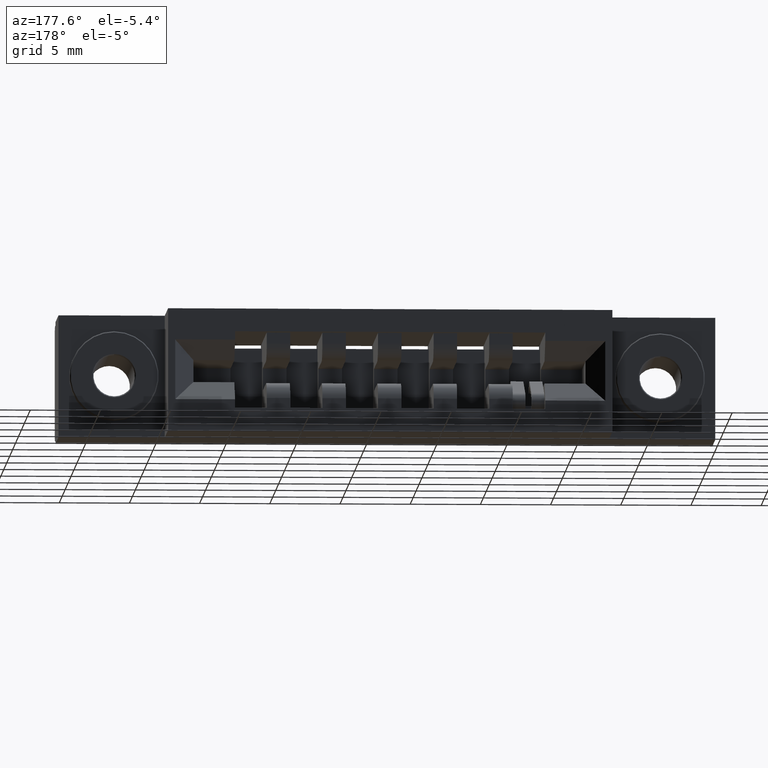
[diagram: clean part render]
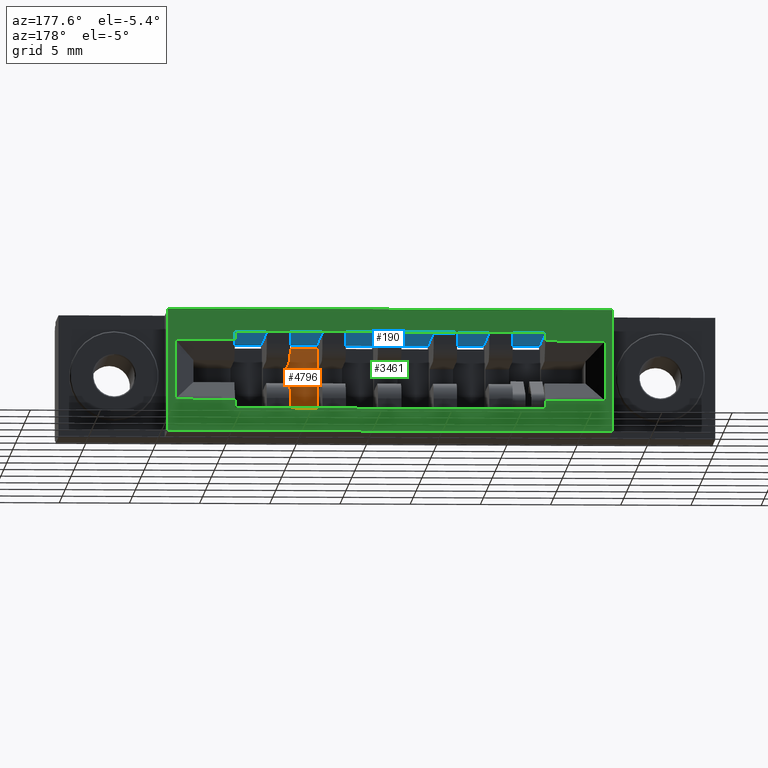
[diagram: same view with three faces highlighted in distinct colors, each labeled with its STEP entity id]
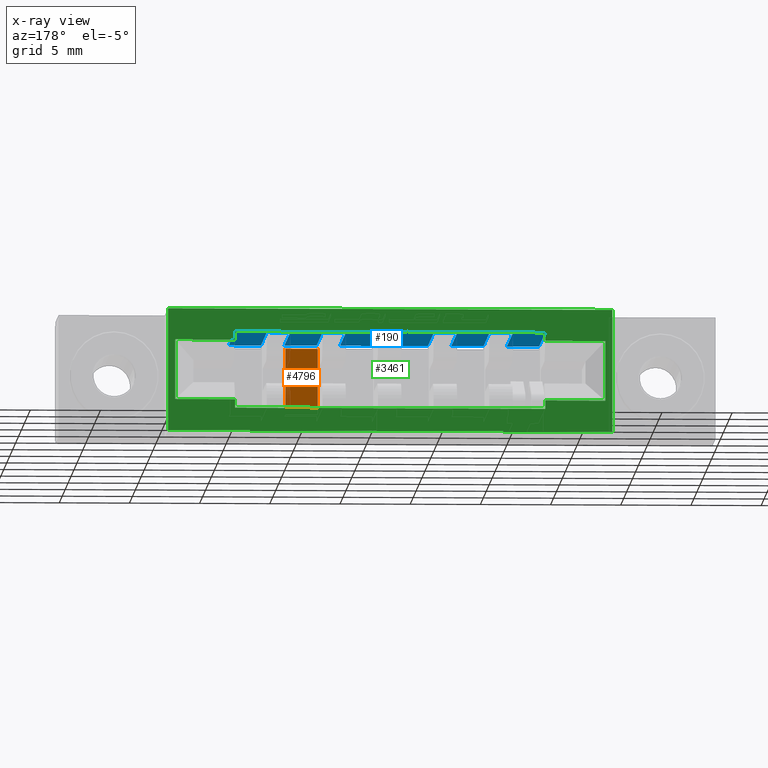
[diagram: x-ray of the same camera — body ghosted, the three highlighted faces saturated]
A machine part, auxiliary view with three faces highlighted in distinct colors.
The next image is the same camera in x-ray (body ghosted, the three faces saturated) — at least one of them is partly hidden behind the body in this view.
Their STEP definitions:

[orange] entity #4796 — the highlighted planar face has unit normal (0, 1, 0).
#553 = ORIENTED_EDGE ( 'NONE', *, *, #4237, .F. ) ;
#997 = CARTESIAN_POINT ( 'NONE',  ( 1.110000000000000500, 0.1160000000000000100, -0.07900000000000020900 ) ) ;
#1367 = VERTEX_POINT ( 'NONE', #9886 ) ;
#1820 = ORIENTED_EDGE ( 'NONE', *, *, #9648, .T. ) ;
#2140 = VERTEX_POINT ( 'NONE', #7825 ) ;
#2379 = EDGE_LOOP ( 'NONE', ( #6875, #8348, #553, #1820 ) ) ;
#2639 = VERTEX_POINT ( 'NONE', #4643 ) ;
#2917 = AXIS2_PLACEMENT_3D ( 'NONE', #10311, #8313, #10034 ) ;
#3245 = CARTESIAN_POINT ( 'NONE',  ( 1.110000000000000500, 0.1160000000000000100, -0.07900000000000020900 ) ) ;
#3788 = DIRECTION ( 'NONE',  ( -0.0000000000000000000, -0.0000000000000000000, 1.000000000000000000 ) ) ;
#4216 = EDGE_CURVE ( 'NONE', #1367, #6765, #6248, .T. ) ;
#4237 = EDGE_CURVE ( 'NONE', #2639, #2140, #6191, .T. ) ;
#4586 = FACE_OUTER_BOUND ( 'NONE', #2379, .T. ) ;
#4643 = CARTESIAN_POINT ( 'NONE',  ( 1.110000000000000500, 0.1160000000000000100, -0.2640000000000001200 ) ) ;
#4672 = VECTOR ( 'NONE', #9397, 39.37007874015748100 ) ;
#4796 = ADVANCED_FACE ( 'NONE', ( #4586 ), #8059, .T. ) ;
#4878 = LINE ( 'NONE', #8355, #4672 ) ;
#5497 = LINE ( 'NONE', #8647, #9651 ) ;
#5505 = DIRECTION ( 'NONE',  ( -1.000000000000000000, -0.0000000000000000000, -3.794233324533698900E-016 ) ) ;
#5864 = EDGE_CURVE ( 'NONE', #1367, #2140, #4878, .T. ) ;
#6149 = VECTOR ( 'NONE', #7850, 39.37007874015748100 ) ;
#6191 = LINE ( 'NONE', #7976, #6149 ) ;
#6248 = LINE ( 'NONE', #3245, #6296 ) ;
#6296 = VECTOR ( 'NONE', #5505, 39.37007874015748100 ) ;
#6765 = VERTEX_POINT ( 'NONE', #997 ) ;
#6875 = ORIENTED_EDGE ( 'NONE', *, *, #4216, .F. ) ;
#7825 = CARTESIAN_POINT ( 'NONE',  ( 1.200000000000000400, 0.1160000000000000100, -0.2640000000000001200 ) ) ;
#7850 = DIRECTION ( 'NONE',  ( 1.000000000000000000, 0.0000000000000000000, -3.794233324533698900E-016 ) ) ;
#7976 = CARTESIAN_POINT ( 'NONE',  ( 1.110000000000000500, 0.1160000000000000100, -0.2640000000000000700 ) ) ;
#8059 = PLANE ( 'NONE',  #2917 ) ;
#8313 = DIRECTION ( 'NONE',  ( 0.0000000000000000000, 1.000000000000000000, 0.0000000000000000000 ) ) ;
#8348 = ORIENTED_EDGE ( 'NONE', *, *, #5864, .T. ) ;
#8355 = CARTESIAN_POINT ( 'NONE',  ( 1.200000000000000400, 0.1160000000000000100, -0.06400000000000011200 ) ) ;
#8647 = CARTESIAN_POINT ( 'NONE',  ( 1.110000000000000500, 0.1160000000000000100, -0.06400000000000008500 ) ) ;
#9397 = DIRECTION ( 'NONE',  ( 0.0000000000000000000, 0.0000000000000000000, -1.000000000000000000 ) ) ;
#9648 = EDGE_CURVE ( 'NONE', #2639, #6765, #5497, .T. ) ;
#9651 = VECTOR ( 'NONE', #3788, 39.37007874015748100 ) ;
#9886 = CARTESIAN_POINT ( 'NONE',  ( 1.200000000000000400, 0.1160000000000000100, -0.07900000000000016700 ) ) ;
#10034 = DIRECTION ( 'NONE',  ( 0.0000000000000000000, -0.0000000000000000000, 1.000000000000000000 ) ) ;
#10311 = CARTESIAN_POINT ( 'NONE',  ( 1.110000000000000500, 0.1160000000000000100, -0.2790000000000000800 ) ) ;

[blue] entity #190 — the highlighted planar face has unit normal (0, 0, 1).
#28 = LINE ( 'NONE', #501, #4801 ) ;
#41 = LINE ( 'NONE', #9350, #5059 ) ;
#91 = VERTEX_POINT ( 'NONE', #7781 ) ;
#153 = VERTEX_POINT ( 'NONE', #8618 ) ;
#190 = ADVANCED_FACE ( 'NONE', ( #8522 ), #632, .F. ) ;
#246 = CARTESIAN_POINT ( 'NONE',  ( 0.7320000000000004300, 0.05099999999999999700, -0.06399999999999991800 ) ) ;
#429 = VECTOR ( 'NONE', #8269, 39.37007874015748100 ) ;
#442 = CARTESIAN_POINT ( 'NONE',  ( 0.5760000000000004000, 0.05099999999999999700, -0.06400000000000011200 ) ) ;
#475 = CARTESIAN_POINT ( 'NONE',  ( 0.4860000000000004300, 0.4419999999999999500, -0.06399999999999991800 ) ) ;
#476 = LINE ( 'NONE', #5905, #429 ) ;
#501 = CARTESIAN_POINT ( 'NONE',  ( 0.9540000000000004000, 0.1160000000000000100, -0.06400000000000008500 ) ) ;
#587 = CARTESIAN_POINT ( 'NONE',  ( 1.200000000000000400, 0.4419999999999999500, -0.06400000000000011200 ) ) ;
#598 = VECTOR ( 'NONE', #6762, 39.37007874015748100 ) ;
#632 = PLANE ( 'NONE',  #4126 ) ;
#652 = DIRECTION ( 'NONE',  ( -1.000000000000000000, 0.0000000000000000000, 1.897116662266849500E-016 ) ) ;
#688 = LINE ( 'NONE', #9585, #762 ) ;
#698 = ORIENTED_EDGE ( 'NONE', *, *, #6629, .F. ) ;
#762 = VECTOR ( 'NONE', #6365, 39.37007874015748100 ) ;
#768 = VERTEX_POINT ( 'NONE', #3516 ) ;
#838 = VERTEX_POINT ( 'NONE', #8982 ) ;
#847 = DIRECTION ( 'NONE',  ( 1.000000000000000000, 0.0000000000000000000, 0.0000000000000000000 ) ) ;
#985 = VECTOR ( 'NONE', #7545, 39.37007874015748100 ) ;
#1003 = LINE ( 'NONE', #7107, #985 ) ;
#1055 = CARTESIAN_POINT ( 'NONE',  ( 1.110000000000000500, 0.05099999999999999700, -0.06399999999999991800 ) ) ;
#1195 = CARTESIAN_POINT ( 'NONE',  ( 0.5760000000000004000, 0.4729999999999999800, -0.06400000000000011200 ) ) ;
#1231 = VERTEX_POINT ( 'NONE', #3319 ) ;
#1342 = CARTESIAN_POINT ( 'NONE',  ( 0.6420000000000004600, 0.4419999999999999500, -0.06399999999999991800 ) ) ;
#1377 = VECTOR ( 'NONE', #652, 39.37007874015748100 ) ;
#1421 = LINE ( 'NONE', #442, #1377 ) ;
#1501 = VECTOR ( 'NONE', #9554, 39.37007874015748100 ) ;
#1512 = VECTOR ( 'NONE', #7908, 39.37007874015748100 ) ;
#1582 = CARTESIAN_POINT ( 'NONE',  ( 0.8880000000000004600, 0.1160000000000000100, -0.06400000000000011200 ) ) ;
#1668 = ORIENTED_EDGE ( 'NONE', *, *, #6178, .T. ) ;
#1672 = DIRECTION ( 'NONE',  ( -0.0000000000000000000, 1.000000000000000000, -0.0000000000000000000 ) ) ;
#1691 = CARTESIAN_POINT ( 'NONE',  ( 1.266000000000000500, 0.05099999999999999700, -0.06399999999999991800 ) ) ;
#1721 = CARTESIAN_POINT ( 'NONE',  ( 0.5760000000000004000, 0.1160000000000000100, -0.06400000000000011200 ) ) ;
#1728 = VERTEX_POINT ( 'NONE', #9601 ) ;
#1754 = LINE ( 'NONE', #7613, #1501 ) ;
#1765 = VECTOR ( 'NONE', #3562, 39.37007874015748100 ) ;
#1798 = LINE ( 'NONE', #7892, #1512 ) ;
#1800 = VECTOR ( 'NONE', #9920, 39.37007874015748100 ) ;
#1821 = LINE ( 'NONE', #7751, #1765 ) ;
#1918 = LINE ( 'NONE', #2029, #3631 ) ;
#1938 = VERTEX_POINT ( 'NONE', #1342 ) ;
#2029 = CARTESIAN_POINT ( 'NONE',  ( 1.266000000000000500, 0.1160000000000000100, -0.06400000000000008500 ) ) ;
#2058 = CARTESIAN_POINT ( 'NONE',  ( 1.356000000000000500, 0.4419999999999999500, -0.06399999999999991800 ) ) ;
#2081 = VECTOR ( 'NONE', #7179, 39.37007874015748100 ) ;
#2131 = LINE ( 'NONE', #8764, #2081 ) ;
#2215 = VECTOR ( 'NONE', #4250, 39.37007874015748100 ) ;
#2398 = ORIENTED_EDGE ( 'NONE', *, *, #6250, .T. ) ;
#2418 = LINE ( 'NONE', #2058, #2215 ) ;
#2462 = DIRECTION ( 'NONE',  ( 1.000000000000000000, 0.0000000000000000000, -1.897116662266849500E-016 ) ) ;
#2468 = DIRECTION ( 'NONE',  ( -0.0000000000000000000, 1.000000000000000000, -0.0000000000000000000 ) ) ;
#2472 = DIRECTION ( 'NONE',  ( 1.897116662266849500E-016, 0.0000000000000000000, 1.000000000000000000 ) ) ;
#2485 = LINE ( 'NONE', #3762, #6647 ) ;
#2645 = ORIENTED_EDGE ( 'NONE', *, *, #6156, .F. ) ;
#2782 = VECTOR ( 'NONE', #3085, 39.37007874015748100 ) ;
#2856 = LINE ( 'NONE', #9478, #2782 ) ;
#2932 = VECTOR ( 'NONE', #847, 39.37007874015748100 ) ;
#2975 = LINE ( 'NONE', #475, #2932 ) ;
#2989 = VERTEX_POINT ( 'NONE', #4480 ) ;
#2993 = VECTOR ( 'NONE', #3147, 39.37007874015748100 ) ;
#3085 = DIRECTION ( 'NONE',  ( -0.0000000000000000000, 1.000000000000000000, -0.0000000000000000000 ) ) ;
#3118 = VECTOR ( 'NONE', #7684, 39.37007874015748100 ) ;
#3147 = DIRECTION ( 'NONE',  ( 1.000000000000000000, 0.0000000000000000000, 0.0000000000000000000 ) ) ;
#3173 = VERTEX_POINT ( 'NONE', #1691 ) ;
#3190 = CARTESIAN_POINT ( 'NONE',  ( 0.4860000000000004300, 0.05099999999999999700, -0.06400000000000008500 ) ) ;
#3269 = VECTOR ( 'NONE', #5222, 39.37007874015748100 ) ;
#3303 = VERTEX_POINT ( 'NONE', #5092 ) ;
#3319 = CARTESIAN_POINT ( 'NONE',  ( 1.110000000000000500, 0.4419999999999999500, -0.06399999999999991800 ) ) ;
#3343 = VERTEX_POINT ( 'NONE', #1055 ) ;
#3430 = ORIENTED_EDGE ( 'NONE', *, *, #9487, .T. ) ;
#3431 = LINE ( 'NONE', #9773, #598 ) ;
#3499 = ORIENTED_EDGE ( 'NONE', *, *, #6221, .F. ) ;
#3516 = CARTESIAN_POINT ( 'NONE',  ( 0.8880000000000004600, 0.4419999999999999500, -0.06400000000000011200 ) ) ;
#3562 = DIRECTION ( 'NONE',  ( 1.000000000000000000, 0.0000000000000000000, 0.0000000000000000000 ) ) ;
#3631 = VECTOR ( 'NONE', #8590, 39.37007874015748100 ) ;
#3676 = VECTOR ( 'NONE', #7513, 39.37007874015748100 ) ;
#3708 = ORIENTED_EDGE ( 'NONE', *, *, #7129, .F. ) ;
#3762 = CARTESIAN_POINT ( 'NONE',  ( 0.7980000000000003800, 0.1160000000000000100, -0.06400000000000008500 ) ) ;
#3790 = LINE ( 'NONE', #5417, #7879 ) ;
#3870 = ORIENTED_EDGE ( 'NONE', *, *, #9631, .T. ) ;
#3909 = ORIENTED_EDGE ( 'NONE', *, *, #9457, .F. ) ;
#3968 = VERTEX_POINT ( 'NONE', #5575 ) ;
#4126 = AXIS2_PLACEMENT_3D ( 'NONE', #10180, #2472, #2462 ) ;
#4217 = ORIENTED_EDGE ( 'NONE', *, *, #6251, .T. ) ;
#4250 = DIRECTION ( 'NONE',  ( -0.0000000000000000000, 1.000000000000000000, -0.0000000000000000000 ) ) ;
#4278 = VERTEX_POINT ( 'NONE', #7216 ) ;
#4480 = CARTESIAN_POINT ( 'NONE',  ( 1.044000000000000500, 0.05099999999999999700, -0.06399999999999991800 ) ) ;
#4653 = DIRECTION ( 'NONE',  ( -0.0000000000000000000, 1.000000000000000000, -0.0000000000000000000 ) ) ;
#4683 = DIRECTION ( 'NONE',  ( -0.0000000000000000000, 1.000000000000000000, -0.0000000000000000000 ) ) ;
#4792 = DIRECTION ( 'NONE',  ( 1.000000000000000000, -0.0000000000000000000, -1.897116662266849500E-016 ) ) ;
#4801 = VECTOR ( 'NONE', #1672, 39.37007874015748100 ) ;
#4851 = ORIENTED_EDGE ( 'NONE', *, *, #9296, .T. ) ;
#5026 = ORIENTED_EDGE ( 'NONE', *, *, #6233, .T. ) ;
#5059 = VECTOR ( 'NONE', #4653, 39.37007874015748100 ) ;
#5073 = ORIENTED_EDGE ( 'NONE', *, *, #5240, .F. ) ;
#5083 = ORIENTED_EDGE ( 'NONE', *, *, #9285, .F. ) ;
#5092 = CARTESIAN_POINT ( 'NONE',  ( 1.200000000000000400, 0.05099999999999999700, -0.06399999999999991800 ) ) ;
#5096 = ORIENTED_EDGE ( 'NONE', *, *, #6291, .T. ) ;
#5186 = ORIENTED_EDGE ( 'NONE', *, *, #9156, .T. ) ;
#5218 = ORIENTED_EDGE ( 'NONE', *, *, #6766, .T. ) ;
#5222 = DIRECTION ( 'NONE',  ( -0.0000000000000000000, 1.000000000000000000, -0.0000000000000000000 ) ) ;
#5240 = EDGE_CURVE ( 'NONE', #1728, #8350, #2975, .T. ) ;
#5277 = EDGE_CURVE ( 'NONE', #5362, #838, #2856, .T. ) ;
#5291 = VECTOR ( 'NONE', #2468, 39.37007874015748100 ) ;
#5312 = CARTESIAN_POINT ( 'NONE',  ( 0.6420000000000004600, 0.05099999999999999700, -0.06399999999999991800 ) ) ;
#5362 = VERTEX_POINT ( 'NONE', #3190 ) ;
#5364 = LINE ( 'NONE', #9230, #3118 ) ;
#5417 = CARTESIAN_POINT ( 'NONE',  ( 1.110000000000000500, 0.1160000000000000100, -0.06400000000000008500 ) ) ;
#5470 = ORIENTED_EDGE ( 'NONE', *, *, #7316, .F. ) ;
#5575 = CARTESIAN_POINT ( 'NONE',  ( 0.5760000000000004000, 0.05099999999999999700, -0.06400000000000011200 ) ) ;
#5613 = ORIENTED_EDGE ( 'NONE', *, *, #9135, .F. ) ;
#5622 = LINE ( 'NONE', #1721, #3676 ) ;
#5666 = ORIENTED_EDGE ( 'NONE', *, *, #6340, .T. ) ;
#5737 = EDGE_CURVE ( 'NONE', #6648, #1231, #688, .T. ) ;
#5793 = ORIENTED_EDGE ( 'NONE', *, *, #5277, .T. ) ;
#5839 = VERTEX_POINT ( 'NONE', #246 ) ;
#5873 = ORIENTED_EDGE ( 'NONE', *, *, #7255, .T. ) ;
#5905 = CARTESIAN_POINT ( 'NONE',  ( 0.5760000000000004000, 0.05099999999999999700, -0.06400000000000011200 ) ) ;
#5921 = CARTESIAN_POINT ( 'NONE',  ( 0.7980000000000003800, 0.4419999999999999500, -0.06399999999999991800 ) ) ;
#6089 = VERTEX_POINT ( 'NONE', #8668 ) ;
#6142 = CARTESIAN_POINT ( 'NONE',  ( 1.044000000000000500, 0.1160000000000000100, -0.06400000000000011200 ) ) ;
#6156 = EDGE_CURVE ( 'NONE', #6089, #91, #2418, .T. ) ;
#6178 = EDGE_CURVE ( 'NONE', #6089, #3173, #2131, .T. ) ;
#6215 = DIRECTION ( 'NONE',  ( -0.0000000000000000000, 1.000000000000000000, -0.0000000000000000000 ) ) ;
#6221 = EDGE_CURVE ( 'NONE', #8859, #4278, #1821, .T. ) ;
#6233 = EDGE_CURVE ( 'NONE', #3303, #3343, #1798, .T. ) ;
#6250 = EDGE_CURVE ( 'NONE', #2989, #9313, #1421, .T. ) ;
#6251 = EDGE_CURVE ( 'NONE', #153, #7643, #1754, .T. ) ;
#6291 = EDGE_CURVE ( 'NONE', #5839, #7969, #1003, .T. ) ;
#6340 = EDGE_CURVE ( 'NONE', #3968, #5362, #476, .T. ) ;
#6365 = DIRECTION ( 'NONE',  ( 1.000000000000000000, 0.0000000000000000000, 0.0000000000000000000 ) ) ;
#6629 = EDGE_CURVE ( 'NONE', #3303, #8859, #7611, .T. ) ;
#6647 = VECTOR ( 'NONE', #4683, 39.37007874015748100 ) ;
#6648 = VERTEX_POINT ( 'NONE', #7588 ) ;
#6762 = DIRECTION ( 'NONE',  ( -0.0000000000000000000, 1.000000000000000000, -0.0000000000000000000 ) ) ;
#6766 = EDGE_CURVE ( 'NONE', #3173, #4278, #1918, .T. ) ;
#6971 = EDGE_LOOP ( 'NONE', ( #2645, #1668, #5218, #3499, #698, #5026, #3870, #8096, #9095, #2398, #3430, #3708, #3909, #4217, #4851, #5073, #5083, #5096, #5186, #5470, #5613, #5666, #5793, #5873 ) ) ;
#7095 = CARTESIAN_POINT ( 'NONE',  ( 0.9540000000000004000, 0.05099999999999999700, -0.06399999999999991800 ) ) ;
#7107 = CARTESIAN_POINT ( 'NONE',  ( 0.5760000000000004000, 0.05099999999999999700, -0.06400000000000011200 ) ) ;
#7129 = EDGE_CURVE ( 'NONE', #768, #9942, #5364, .T. ) ;
#7179 = DIRECTION ( 'NONE',  ( -1.000000000000000000, 0.0000000000000000000, 1.897116662266849500E-016 ) ) ;
#7216 = CARTESIAN_POINT ( 'NONE',  ( 1.266000000000000500, 0.4419999999999999500, -0.06399999999999991800 ) ) ;
#7255 = EDGE_CURVE ( 'NONE', #838, #91, #9797, .T. ) ;
#7316 = EDGE_CURVE ( 'NONE', #8995, #1938, #9187, .T. ) ;
#7513 = DIRECTION ( 'NONE',  ( -0.0000000000000000000, 1.000000000000000000, -0.0000000000000000000 ) ) ;
#7545 = DIRECTION ( 'NONE',  ( -1.000000000000000000, 0.0000000000000000000, 1.897116662266849500E-016 ) ) ;
#7588 = CARTESIAN_POINT ( 'NONE',  ( 1.044000000000000500, 0.4419999999999999500, -0.06400000000000011200 ) ) ;
#7611 = LINE ( 'NONE', #9795, #3269 ) ;
#7613 = CARTESIAN_POINT ( 'NONE',  ( 0.5760000000000004000, 0.05099999999999999700, -0.06400000000000011200 ) ) ;
#7643 = VERTEX_POINT ( 'NONE', #10426 ) ;
#7684 = DIRECTION ( 'NONE',  ( 1.000000000000000000, 0.0000000000000000000, 0.0000000000000000000 ) ) ;
#7751 = CARTESIAN_POINT ( 'NONE',  ( 0.4860000000000004300, 0.4419999999999999500, -0.06399999999999991800 ) ) ;
#7781 = CARTESIAN_POINT ( 'NONE',  ( 1.356000000000000500, 0.4729999999999999800, -0.06399999999999991800 ) ) ;
#7842 = VECTOR ( 'NONE', #4792, 39.37007874015748100 ) ;
#7879 = VECTOR ( 'NONE', #6215, 39.37007874015748100 ) ;
#7892 = CARTESIAN_POINT ( 'NONE',  ( 0.5760000000000004000, 0.05099999999999999700, -0.06400000000000011200 ) ) ;
#7908 = DIRECTION ( 'NONE',  ( -1.000000000000000000, 0.0000000000000000000, 1.897116662266849500E-016 ) ) ;
#7969 = VERTEX_POINT ( 'NONE', #5312 ) ;
#8096 = ORIENTED_EDGE ( 'NONE', *, *, #5737, .F. ) ;
#8269 = DIRECTION ( 'NONE',  ( -1.000000000000000000, 0.0000000000000000000, 1.897116662266849500E-016 ) ) ;
#8350 = VERTEX_POINT ( 'NONE', #5921 ) ;
#8522 = FACE_OUTER_BOUND ( 'NONE', #6971, .T. ) ;
#8590 = DIRECTION ( 'NONE',  ( -0.0000000000000000000, 1.000000000000000000, -0.0000000000000000000 ) ) ;
#8614 = LINE ( 'NONE', #6142, #1800 ) ;
#8618 = CARTESIAN_POINT ( 'NONE',  ( 0.8880000000000004600, 0.05099999999999999700, -0.06399999999999991800 ) ) ;
#8634 = CARTESIAN_POINT ( 'NONE',  ( 0.5760000000000004000, 0.4419999999999999500, -0.06399999999999991800 ) ) ;
#8668 = CARTESIAN_POINT ( 'NONE',  ( 1.356000000000000500, 0.05100000000000001800, -0.06399999999999991800 ) ) ;
#8764 = CARTESIAN_POINT ( 'NONE',  ( 0.5760000000000004000, 0.05099999999999999700, -0.06400000000000011200 ) ) ;
#8859 = VERTEX_POINT ( 'NONE', #587 ) ;
#8927 = CARTESIAN_POINT ( 'NONE',  ( 0.9540000000000002900, 0.4419999999999999500, -0.06399999999999991800 ) ) ;
#8982 = CARTESIAN_POINT ( 'NONE',  ( 0.4860000000000004300, 0.4729999999999999800, -0.06400000000000008500 ) ) ;
#8995 = VERTEX_POINT ( 'NONE', #8634 ) ;
#9095 = ORIENTED_EDGE ( 'NONE', *, *, #9621, .F. ) ;
#9135 = EDGE_CURVE ( 'NONE', #3968, #8995, #5622, .T. ) ;
#9156 = EDGE_CURVE ( 'NONE', #7969, #1938, #3431, .T. ) ;
#9187 = LINE ( 'NONE', #9558, #2993 ) ;
#9230 = CARTESIAN_POINT ( 'NONE',  ( 0.4860000000000004300, 0.4419999999999999500, -0.06399999999999991800 ) ) ;
#9285 = EDGE_CURVE ( 'NONE', #5839, #1728, #41, .T. ) ;
#9296 = EDGE_CURVE ( 'NONE', #7643, #8350, #2485, .T. ) ;
#9313 = VERTEX_POINT ( 'NONE', #7095 ) ;
#9350 = CARTESIAN_POINT ( 'NONE',  ( 0.7320000000000004300, 0.1160000000000000100, -0.06400000000000011200 ) ) ;
#9435 = LINE ( 'NONE', #1582, #5291 ) ;
#9457 = EDGE_CURVE ( 'NONE', #153, #768, #9435, .T. ) ;
#9478 = CARTESIAN_POINT ( 'NONE',  ( 0.4860000000000004300, 0.1160000000000000100, -0.06400000000000008500 ) ) ;
#9487 = EDGE_CURVE ( 'NONE', #9313, #9942, #28, .T. ) ;
#9554 = DIRECTION ( 'NONE',  ( -1.000000000000000000, 0.0000000000000000000, 1.897116662266849500E-016 ) ) ;
#9558 = CARTESIAN_POINT ( 'NONE',  ( 0.4860000000000004300, 0.4419999999999999500, -0.06399999999999991800 ) ) ;
#9585 = CARTESIAN_POINT ( 'NONE',  ( 0.4860000000000004300, 0.4419999999999999500, -0.06399999999999991800 ) ) ;
#9601 = CARTESIAN_POINT ( 'NONE',  ( 0.7320000000000004300, 0.4419999999999999500, -0.06400000000000011200 ) ) ;
#9621 = EDGE_CURVE ( 'NONE', #2989, #6648, #8614, .T. ) ;
#9631 = EDGE_CURVE ( 'NONE', #3343, #1231, #3790, .T. ) ;
#9773 = CARTESIAN_POINT ( 'NONE',  ( 0.6420000000000004600, 0.1160000000000000100, -0.06400000000000008500 ) ) ;
#9795 = CARTESIAN_POINT ( 'NONE',  ( 1.200000000000000400, 0.1160000000000000100, -0.06400000000000011200 ) ) ;
#9797 = LINE ( 'NONE', #1195, #7842 ) ;
#9920 = DIRECTION ( 'NONE',  ( -0.0000000000000000000, 1.000000000000000000, -0.0000000000000000000 ) ) ;
#9942 = VERTEX_POINT ( 'NONE', #8927 ) ;
#10180 = CARTESIAN_POINT ( 'NONE',  ( 0.5760000000000004000, 0.1160000000000000100, -0.06400000000000011200 ) ) ;
#10426 = CARTESIAN_POINT ( 'NONE',  ( 0.7980000000000003800, 0.05099999999999999700, -0.06399999999999991800 ) ) ;

[green] entity #3461 — the highlighted planar face has unit normal (0, -1, 0).
#61 = VECTOR ( 'NONE', #5308, 39.37007874015748100 ) ;
#82 = LINE ( 'NONE', #8223, #61 ) ;
#91 = VERTEX_POINT ( 'NONE', #7781 ) ;
#178 = CARTESIAN_POINT ( 'NONE',  ( 3.965836149893288200E-018, 0.4729999999999999800, -0.08749999999999995300 ) ) ;
#242 = VECTOR ( 'NONE', #7510, 39.37007874015748100 ) ;
#305 = LINE ( 'NONE', #7869, #242 ) ;
#452 = VERTEX_POINT ( 'NONE', #2953 ) ;
#506 = LINE ( 'NONE', #1659, #9292 ) ;
#546 = DIRECTION ( 'NONE',  ( -0.0000000000000000000, -0.0000000000000000000, 1.000000000000000000 ) ) ;
#769 = VERTEX_POINT ( 'NONE', #3806 ) ;
#838 = VERTEX_POINT ( 'NONE', #8982 ) ;
#862 = VERTEX_POINT ( 'NONE', #8817 ) ;
#893 = VECTOR ( 'NONE', #5834, 39.37007874015748100 ) ;
#1123 = VERTEX_POINT ( 'NONE', #10163 ) ;
#1195 = CARTESIAN_POINT ( 'NONE',  ( 0.5760000000000004000, 0.4729999999999999800, -0.06400000000000011200 ) ) ;
#1206 = CARTESIAN_POINT ( 'NONE',  ( 0.3179999999999993900, 0.4729999999999999800, -0.3430000000000000300 ) ) ;
#1400 = VERTEX_POINT ( 'NONE', #7463 ) ;
#1412 = VECTOR ( 'NONE', #3139, 39.37007874015748100 ) ;
#1422 = LINE ( 'NONE', #6110, #1412 ) ;
#1451 = LINE ( 'NONE', #9495, #3756 ) ;
#1498 = DIRECTION ( 'NONE',  ( 0.0000000000000000000, 0.0000000000000000000, -1.000000000000000000 ) ) ;
#1659 = CARTESIAN_POINT ( 'NONE',  ( 0.4860000000000004300, 0.4729999999999999800, -0.06400000000000008500 ) ) ;
#1924 = CARTESIAN_POINT ( 'NONE',  ( 0.0000000000000000000, 0.4729999999999999800, -0.3430000000000000300 ) ) ;
#2155 = VECTOR ( 'NONE', #1498, 39.37007874015748100 ) ;
#2182 = DIRECTION ( 'NONE',  ( 0.0000000000000000000, 0.0000000000000000000, -1.000000000000000000 ) ) ;
#2262 = LINE ( 'NONE', #6925, #2155 ) ;
#2478 = EDGE_LOOP ( 'NONE', ( #8382, #8466, #8502, #8831 ) ) ;
#2483 = VECTOR ( 'NONE', #2872, 39.37007874015748100 ) ;
#2564 = LINE ( 'NONE', #178, #2483 ) ;
#2581 = DIRECTION ( 'NONE',  ( -1.000000000000000000, 0.0000000000000000000, 0.0000000000000000000 ) ) ;
#2812 = VERTEX_POINT ( 'NONE', #6358 ) ;
#2872 = DIRECTION ( 'NONE',  ( -1.000000000000000000, 0.0000000000000000000, 1.552186360036511700E-017 ) ) ;
#2899 = CARTESIAN_POINT ( 'NONE',  ( 1.524000000000000900, 0.4729999999999999800, -0.3430000000000000300 ) ) ;
#2953 = CARTESIAN_POINT ( 'NONE',  ( 0.3179999999999993900, 0.4729999999999999800, -0.08749999999999996700 ) ) ;
#3057 = EDGE_LOOP ( 'NONE', ( #6254, #6345, #6480, #6566, #6614, #6665, #6709, #6991, #7058, #7118, #7240, #8133 ) ) ;
#3139 = DIRECTION ( 'NONE',  ( 0.0000000000000000000, 0.0000000000000000000, -1.000000000000000000 ) ) ;
#3359 = AXIS2_PLACEMENT_3D ( 'NONE', #9539, #3444, #7432 ) ;
#3444 = DIRECTION ( 'NONE',  ( 0.0000000000000000000, -1.000000000000000000, 0.0000000000000000000 ) ) ;
#3451 = VECTOR ( 'NONE', #6373, 39.37007874015748100 ) ;
#3461 = ADVANCED_FACE ( 'NONE', ( #6937, #7017 ), #10381, .F. ) ;
#3577 = DIRECTION ( 'NONE',  ( -1.000000000000000000, 0.0000000000000000000, 1.552186360036511700E-017 ) ) ;
#3585 = DIRECTION ( 'NONE',  ( -1.000000000000000000, -0.0000000000000000000, -0.0000000000000000000 ) ) ;
#3612 = LINE ( 'NONE', #10192, #893 ) ;
#3756 = VECTOR ( 'NONE', #3899, 39.37007874015748100 ) ;
#3806 = CARTESIAN_POINT ( 'NONE',  ( 1.544000000000000700, 0.4729999999999999800, 0.0000000000000000000 ) ) ;
#3899 = DIRECTION ( 'NONE',  ( 1.000000000000000000, 0.0000000000000000000, 0.0000000000000000000 ) ) ;
#3957 = VECTOR ( 'NONE', #3585, 39.37007874015748100 ) ;
#4066 = CARTESIAN_POINT ( 'NONE',  ( 3.965836149893288200E-018, 0.4729999999999999800, -0.08749999999999995300 ) ) ;
#4328 = VERTEX_POINT ( 'NONE', #9969 ) ;
#4454 = CARTESIAN_POINT ( 'NONE',  ( 0.2979999999999999300, 0.4729999999999999800, -0.3430000000000000300 ) ) ;
#4530 = EDGE_CURVE ( 'NONE', #769, #6290, #5419, .T. ) ;
#4558 = VERTEX_POINT ( 'NONE', #7847 ) ;
#4620 = EDGE_CURVE ( 'NONE', #1400, #2812, #5271, .T. ) ;
#4727 = EDGE_CURVE ( 'NONE', #8324, #9304, #4869, .T. ) ;
#4792 = DIRECTION ( 'NONE',  ( 1.000000000000000000, -0.0000000000000000000, -1.897116662266849500E-016 ) ) ;
#4869 = LINE ( 'NONE', #4066, #4911 ) ;
#4911 = VECTOR ( 'NONE', #3577, 39.37007874015748100 ) ;
#5047 = VERTEX_POINT ( 'NONE', #6474 ) ;
#5151 = VECTOR ( 'NONE', #2182, 39.37007874015748100 ) ;
#5210 = VECTOR ( 'NONE', #2581, 39.37007874015748100 ) ;
#5271 = LINE ( 'NONE', #6829, #5210 ) ;
#5308 = DIRECTION ( 'NONE',  ( -9.955714262624865200E-017, 0.0000000000000000000, -1.000000000000000000 ) ) ;
#5400 = VECTOR ( 'NONE', #9326, 39.37007874015748100 ) ;
#5419 = LINE ( 'NONE', #10064, #5400 ) ;
#5464 = CARTESIAN_POINT ( 'NONE',  ( 1.356000000000000500, 0.4729999999999999800, -0.08749999999999999400 ) ) ;
#5570 = CARTESIAN_POINT ( 'NONE',  ( 0.0000000000000000000, 0.4729999999999999800, 0.0000000000000000000 ) ) ;
#5606 = EDGE_CURVE ( 'NONE', #4328, #1400, #1422, .T. ) ;
#5827 = EDGE_CURVE ( 'NONE', #5047, #7960, #82, .T. ) ;
#5834 = DIRECTION ( 'NONE',  ( -0.0000000000000000000, -0.0000000000000000000, 1.000000000000000000 ) ) ;
#6110 = CARTESIAN_POINT ( 'NONE',  ( 1.356000000000000500, 0.4729999999999999800, -0.06399999999999991800 ) ) ;
#6114 = EDGE_CURVE ( 'NONE', #4558, #452, #2564, .T. ) ;
#6161 = EDGE_CURVE ( 'NONE', #91, #9304, #2262, .T. ) ;
#6254 = ORIENTED_EDGE ( 'NONE', *, *, #6872, .T. ) ;
#6290 = VERTEX_POINT ( 'NONE', #10221 ) ;
#6345 = ORIENTED_EDGE ( 'NONE', *, *, #6348, .T. ) ;
#6348 = EDGE_CURVE ( 'NONE', #9132, #1123, #305, .T. ) ;
#6358 = CARTESIAN_POINT ( 'NONE',  ( 0.4860000000000004300, 0.4729999999999999800, -0.2790000000000000800 ) ) ;
#6373 = DIRECTION ( 'NONE',  ( 1.000000000000000000, 0.0000000000000000000, 0.0000000000000000000 ) ) ;
#6474 = CARTESIAN_POINT ( 'NONE',  ( 0.2979999999999999300, 0.4729999999999999800, 0.0000000000000000000 ) ) ;
#6480 = ORIENTED_EDGE ( 'NONE', *, *, #7419, .F. ) ;
#6566 = ORIENTED_EDGE ( 'NONE', *, *, #4620, .F. ) ;
#6614 = ORIENTED_EDGE ( 'NONE', *, *, #5606, .F. ) ;
#6665 = ORIENTED_EDGE ( 'NONE', *, *, #7277, .T. ) ;
#6709 = ORIENTED_EDGE ( 'NONE', *, *, #7185, .T. ) ;
#6829 = CARTESIAN_POINT ( 'NONE',  ( 0.5760000000000004000, 0.4729999999999999800, -0.2790000000000000800 ) ) ;
#6872 = EDGE_CURVE ( 'NONE', #452, #9132, #10257, .T. ) ;
#6925 = CARTESIAN_POINT ( 'NONE',  ( 1.356000000000000500, 0.4729999999999999800, -0.06399999999999991800 ) ) ;
#6937 = FACE_BOUND ( 'NONE', #3057, .T. ) ;
#6991 = ORIENTED_EDGE ( 'NONE', *, *, #4727, .T. ) ;
#7000 = LINE ( 'NONE', #2899, #8839 ) ;
#7017 = FACE_OUTER_BOUND ( 'NONE', #2478, .T. ) ;
#7058 = ORIENTED_EDGE ( 'NONE', *, *, #6161, .F. ) ;
#7118 = ORIENTED_EDGE ( 'NONE', *, *, #7255, .F. ) ;
#7185 = EDGE_CURVE ( 'NONE', #862, #8324, #7000, .T. ) ;
#7240 = ORIENTED_EDGE ( 'NONE', *, *, #7443, .F. ) ;
#7255 = EDGE_CURVE ( 'NONE', #838, #91, #9797, .T. ) ;
#7277 = EDGE_CURVE ( 'NONE', #4328, #862, #1451, .T. ) ;
#7343 = CARTESIAN_POINT ( 'NONE',  ( 0.3179999999999993900, 0.4729999999999999800, -0.2555000000000003400 ) ) ;
#7419 = EDGE_CURVE ( 'NONE', #2812, #1123, #3612, .T. ) ;
#7432 = DIRECTION ( 'NONE',  ( 0.0000000000000000000, -0.0000000000000000000, -1.000000000000000000 ) ) ;
#7443 = EDGE_CURVE ( 'NONE', #4558, #838, #506, .T. ) ;
#7463 = CARTESIAN_POINT ( 'NONE',  ( 1.356000000000000500, 0.4729999999999999800, -0.2790000000000000800 ) ) ;
#7510 = DIRECTION ( 'NONE',  ( 1.000000000000000000, 0.0000000000000000000, 0.0000000000000000000 ) ) ;
#7781 = CARTESIAN_POINT ( 'NONE',  ( 1.356000000000000500, 0.4729999999999999800, -0.06399999999999991800 ) ) ;
#7842 = VECTOR ( 'NONE', #4792, 39.37007874015748100 ) ;
#7847 = CARTESIAN_POINT ( 'NONE',  ( 0.4860000000000004300, 0.4729999999999999800, -0.08749999999999996700 ) ) ;
#7869 = CARTESIAN_POINT ( 'NONE',  ( 0.0000000000000000000, 0.4729999999999999800, -0.2555000000000003400 ) ) ;
#7960 = VERTEX_POINT ( 'NONE', #4454 ) ;
#8030 = LINE ( 'NONE', #1924, #3957 ) ;
#8133 = ORIENTED_EDGE ( 'NONE', *, *, #6114, .T. ) ;
#8223 = CARTESIAN_POINT ( 'NONE',  ( 0.2979999999999999900, 0.4729999999999999800, -2.966802850262209500E-017 ) ) ;
#8324 = VERTEX_POINT ( 'NONE', #10236 ) ;
#8382 = ORIENTED_EDGE ( 'NONE', *, *, #4530, .T. ) ;
#8466 = ORIENTED_EDGE ( 'NONE', *, *, #8922, .T. ) ;
#8502 = ORIENTED_EDGE ( 'NONE', *, *, #5827, .F. ) ;
#8711 = EDGE_CURVE ( 'NONE', #5047, #769, #9586, .T. ) ;
#8817 = CARTESIAN_POINT ( 'NONE',  ( 1.524000000000000900, 0.4729999999999999800, -0.2555000000000003400 ) ) ;
#8831 = ORIENTED_EDGE ( 'NONE', *, *, #8711, .T. ) ;
#8839 = VECTOR ( 'NONE', #9316, 39.37007874015748100 ) ;
#8922 = EDGE_CURVE ( 'NONE', #6290, #7960, #8030, .T. ) ;
#8982 = CARTESIAN_POINT ( 'NONE',  ( 0.4860000000000004300, 0.4729999999999999800, -0.06400000000000008500 ) ) ;
#9132 = VERTEX_POINT ( 'NONE', #7343 ) ;
#9292 = VECTOR ( 'NONE', #546, 39.37007874015748100 ) ;
#9304 = VERTEX_POINT ( 'NONE', #5464 ) ;
#9316 = DIRECTION ( 'NONE',  ( 0.0000000000000000000, 0.0000000000000000000, 1.000000000000000000 ) ) ;
#9326 = DIRECTION ( 'NONE',  ( 0.0000000000000000000, 0.0000000000000000000, -1.000000000000000000 ) ) ;
#9495 = CARTESIAN_POINT ( 'NONE',  ( 0.0000000000000000000, 0.4729999999999999800, -0.2555000000000003400 ) ) ;
#9539 = CARTESIAN_POINT ( 'NONE',  ( 0.0000000000000000000, 0.4729999999999999800, -0.3430000000000000300 ) ) ;
#9586 = LINE ( 'NONE', #5570, #3451 ) ;
#9797 = LINE ( 'NONE', #1195, #7842 ) ;
#9969 = CARTESIAN_POINT ( 'NONE',  ( 1.356000000000000500, 0.4729999999999999800, -0.2555000000000003400 ) ) ;
#10064 = CARTESIAN_POINT ( 'NONE',  ( 1.544000000000000700, 0.4729999999999999800, 0.0000000000000000000 ) ) ;
#10163 = CARTESIAN_POINT ( 'NONE',  ( 0.4860000000000004300, 0.4729999999999999800, -0.2555000000000003400 ) ) ;
#10192 = CARTESIAN_POINT ( 'NONE',  ( 0.4860000000000004300, 0.4729999999999999800, -0.06400000000000008500 ) ) ;
#10221 = CARTESIAN_POINT ( 'NONE',  ( 1.544000000000000700, 0.4729999999999999800, -0.3430000000000000300 ) ) ;
#10236 = CARTESIAN_POINT ( 'NONE',  ( 1.524000000000000900, 0.4729999999999999800, -0.08749999999999999400 ) ) ;
#10257 = LINE ( 'NONE', #1206, #5151 ) ;
#10381 = PLANE ( 'NONE',  #3359 ) ;